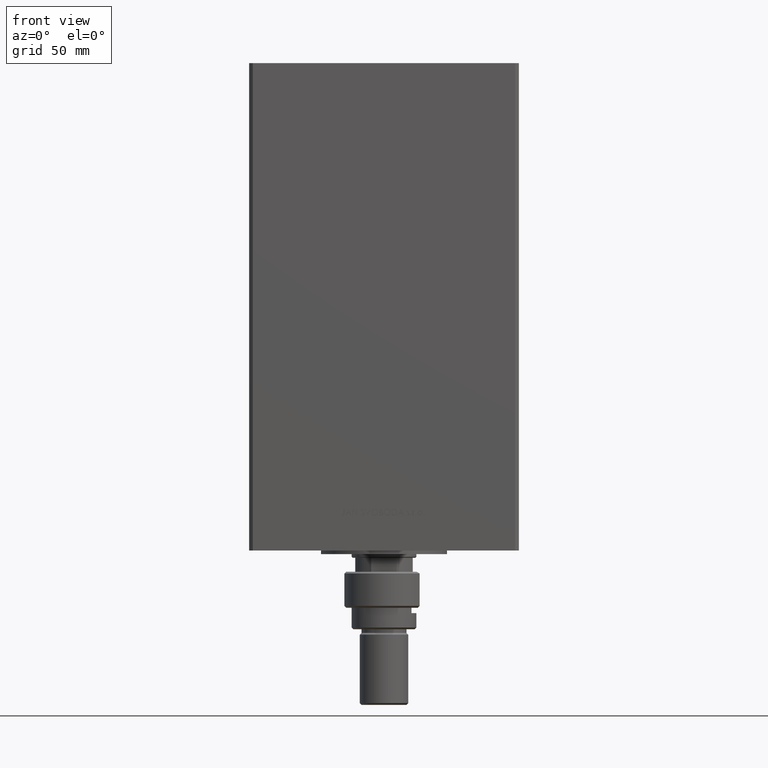
[diagram: clean part render]
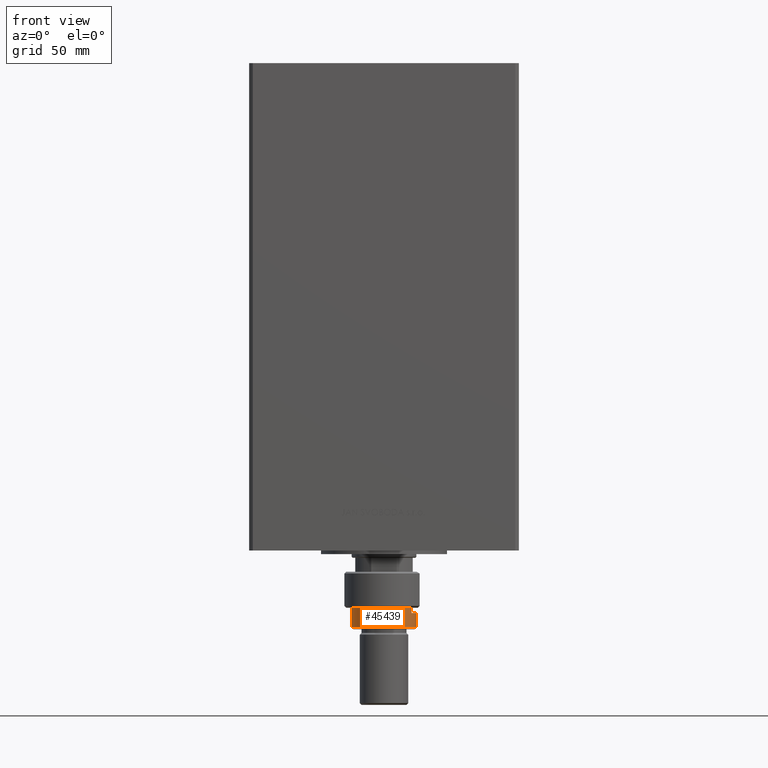
[diagram: same view with one face highlighted and labeled with its STEP entity id]
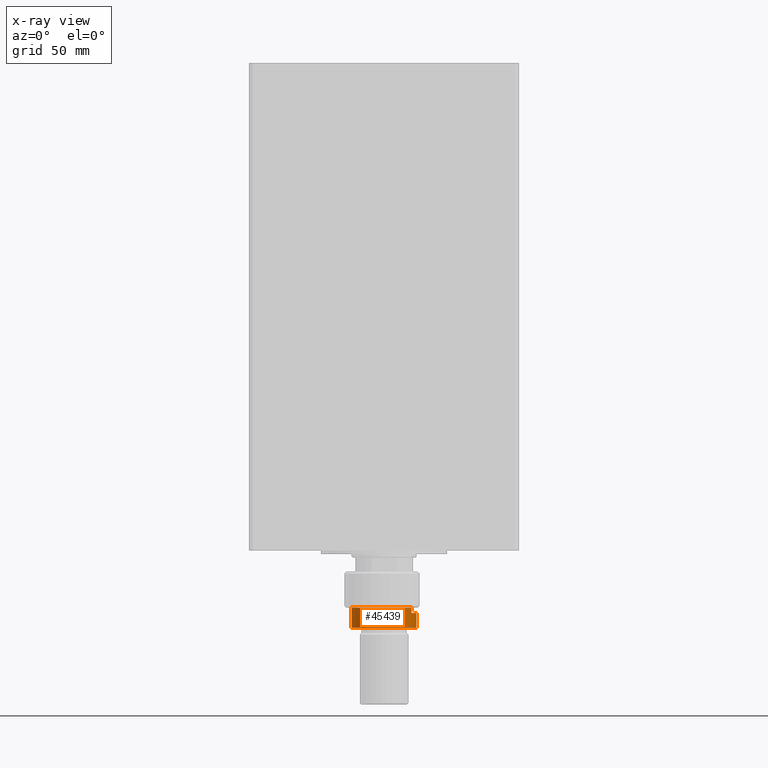
[diagram: x-ray of the same camera — body ghosted, the highlighted face saturated]
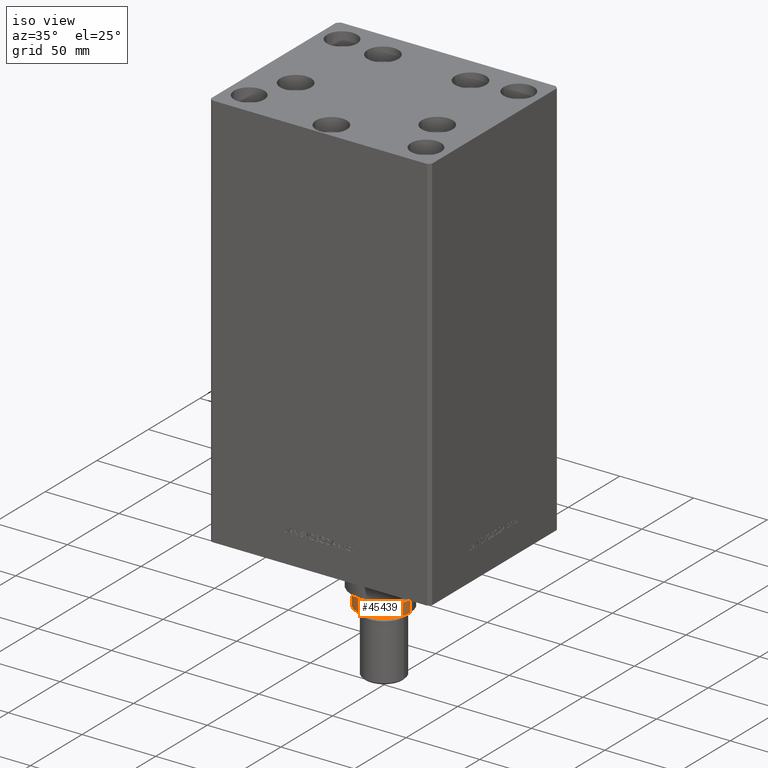
[diagram: same view with one face highlighted and labeled with its STEP entity id]
A machine part, front view. The second image highlights one B-rep face of the part: STEP entity #45439.
The next image is the same camera in x-ray: the body ghosted, the highlighted face saturated — about 0% of this face is hidden behind the body in this view.
A second angle (iso view) of the same face is appended — the face is thin or edge-on in the first view.
In plain terms, the highlighted cylindrical surface (edge-blend (fillet) strip) has radius 18 mm, axis along (0, -0, 1).
Its self-contained STEP definition (entity closure, byte-faithful):
#1737 = FACE_OUTER_BOUND ( 'NONE', #25130, .T. ) ;
#4447 = DIRECTION ( 'NONE',  ( -0.000000000000000000, -0.000000000000000000, -1.000000000000000000 ) ) ;
#4952 = VERTEX_POINT ( 'NONE', #35379 ) ;
#5147 = CARTESIAN_POINT ( 'NONE',  ( 0.000000000000000000, 0.000000000000000000, 20.00000000000000000 ) ) ;
#5731 = AXIS2_PLACEMENT_3D ( 'NONE', #14358, #45041, #6783 ) ;
#6783 = DIRECTION ( 'NONE',  ( 1.000000000000000000, 0.000000000000000000, 0.000000000000000000 ) ) ;
#7118 = EDGE_CURVE ( 'NONE', #11238, #14274, #13502, .T. ) ;
#9209 = CARTESIAN_POINT ( 'NONE',  ( -15.28888485142065434, -9.500000000000000000, 23.00000000000000000 ) ) ;
#9233 = CARTESIAN_POINT ( 'NONE',  ( 18.00000000000000000, 2.204364238465235428E-15, 30.99999999999999645 ) ) ;
#10290 = ORIENTED_EDGE ( 'NONE', *, *, #43733, .T. ) ;
#10932 = EDGE_CURVE ( 'NONE', #18767, #4952, #16177, .T. ) ;
#11238 = VERTEX_POINT ( 'NONE', #12564 ) ;
#12564 = CARTESIAN_POINT ( 'NONE',  ( -18.00000000000000000, 0.000000000000000000, 30.99999999999999645 ) ) ;
#13053 = ORIENTED_EDGE ( 'NONE', *, *, #41730, .T. ) ;
#13246 = CARTESIAN_POINT ( 'NONE',  ( 0.000000000000000000, 0.000000000000000000, 23.00000000000000000 ) ) ;
#13405 = ORIENTED_EDGE ( 'NONE', *, *, #7118, .T. ) ;
#13502 = LINE ( 'NONE', #44434, #32256 ) ;
#13790 = EDGE_CURVE ( 'NONE', #38040, #31882, #35847, .T. ) ;
#14274 = VERTEX_POINT ( 'NONE', #44381 ) ;
#14358 = CARTESIAN_POINT ( 'NONE',  ( 0.000000000000000000, 0.000000000000000000, 30.99999999999999645 ) ) ;
#15542 = AXIS2_PLACEMENT_3D ( 'NONE', #47361, #28843, #20241 ) ;
#15659 = ORIENTED_EDGE ( 'NONE', *, *, #41493, .F. ) ;
#16177 = LINE ( 'NONE', #32650, #48532 ) ;
#16545 = DIRECTION ( 'NONE',  ( 0.000000000000000000, 0.000000000000000000, 1.000000000000000000 ) ) ;
#17154 = CIRCLE ( 'NONE', #47901, 18.00000000000000000 ) ;
#18476 = CARTESIAN_POINT ( 'NONE',  ( 18.00000000000000000, 2.204364238465235428E-15, 20.00000000000000000 ) ) ;
#18767 = VERTEX_POINT ( 'NONE', #9209 ) ;
#20241 = DIRECTION ( 'NONE',  ( -1.000000000000000000, 0.000000000000000000, 0.000000000000000000 ) ) ;
#20494 = DIRECTION ( 'NONE',  ( -0.000000000000000000, -0.000000000000000000, -1.000000000000000000 ) ) ;
#22128 = DIRECTION ( 'NONE',  ( -0.000000000000000000, -0.000000000000000000, -1.000000000000000000 ) ) ;
#25130 = EDGE_LOOP ( 'NONE', ( #48775, #13053, #13405, #15659, #40173, #10290 ) ) ;
#27575 = AXIS2_PLACEMENT_3D ( 'NONE', #13246, #40632, #44167 ) ;
#28843 = DIRECTION ( 'NONE',  ( -0.000000000000000000, -0.000000000000000000, -1.000000000000000000 ) ) ;
#31882 = VERTEX_POINT ( 'NONE', #18476 ) ;
#32256 = VECTOR ( 'NONE', #22128, 1000.000000000000000 ) ;
#32507 = DIRECTION ( 'NONE',  ( 1.000000000000000000, 0.000000000000000000, 0.000000000000000000 ) ) ;
#32650 = CARTESIAN_POINT ( 'NONE',  ( -15.28888485142065434, -9.500000000000000000, 32.00000000000000000 ) ) ;
#35379 = CARTESIAN_POINT ( 'NONE',  ( -15.28888485142065434, -9.500000000000000000, 19.99999999999999645 ) ) ;
#35847 = LINE ( 'NONE', #39155, #49464 ) ;
#36437 = CIRCLE ( 'NONE', #27575, 18.00000000000000000 ) ;
#38040 = VERTEX_POINT ( 'NONE', #9233 ) ;
#39155 = CARTESIAN_POINT ( 'NONE',  ( 18.00000000000000000, 2.204364238465235428E-15, 32.00000000000000000 ) ) ;
#40173 = ORIENTED_EDGE ( 'NONE', *, *, #10932, .T. ) ;
#40632 = DIRECTION ( 'NONE',  ( 0.000000000000000000, 0.000000000000000000, -1.000000000000000000 ) ) ;
#41493 = EDGE_CURVE ( 'NONE', #18767, #14274, #36437, .T. ) ;
#41730 = EDGE_CURVE ( 'NONE', #38040, #11238, #42153, .T. ) ;
#42153 = CIRCLE ( 'NONE', #5731, 18.00000000000000000 ) ;
#43733 = EDGE_CURVE ( 'NONE', #4952, #31882, #17154, .T. ) ;
#44167 = DIRECTION ( 'NONE',  ( -1.000000000000000000, 0.000000000000000000, 0.000000000000000000 ) ) ;
#44381 = CARTESIAN_POINT ( 'NONE',  ( -18.00000000000000000, 0.000000000000000000, 23.00000000000000000 ) ) ;
#44434 = CARTESIAN_POINT ( 'NONE',  ( -18.00000000000000000, 0.000000000000000000, 32.00000000000000000 ) ) ;
#45041 = DIRECTION ( 'NONE',  ( 0.000000000000000000, 0.000000000000000000, -1.000000000000000000 ) ) ;
#45439 = ADVANCED_FACE ( 'NONE', ( #1737 ), #48107, .T. ) ;
#47361 = CARTESIAN_POINT ( 'NONE',  ( 0.000000000000000000, 0.000000000000000000, 32.00000000000000000 ) ) ;
#47901 = AXIS2_PLACEMENT_3D ( 'NONE', #5147, #16545, #32507 ) ;
#48107 = CYLINDRICAL_SURFACE ( 'NONE', #15542, 18.00000000000000000 ) ;
#48532 = VECTOR ( 'NONE', #20494, 1000.000000000000000 ) ;
#48775 = ORIENTED_EDGE ( 'NONE', *, *, #13790, .F. ) ;
#49464 = VECTOR ( 'NONE', #4447, 1000.000000000000000 ) ;